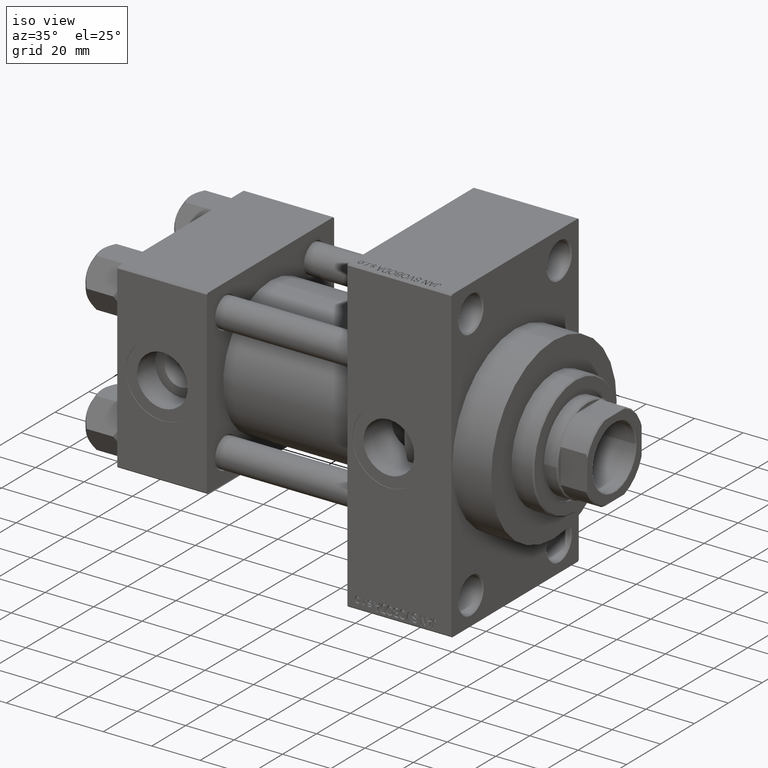
[diagram: clean part render]
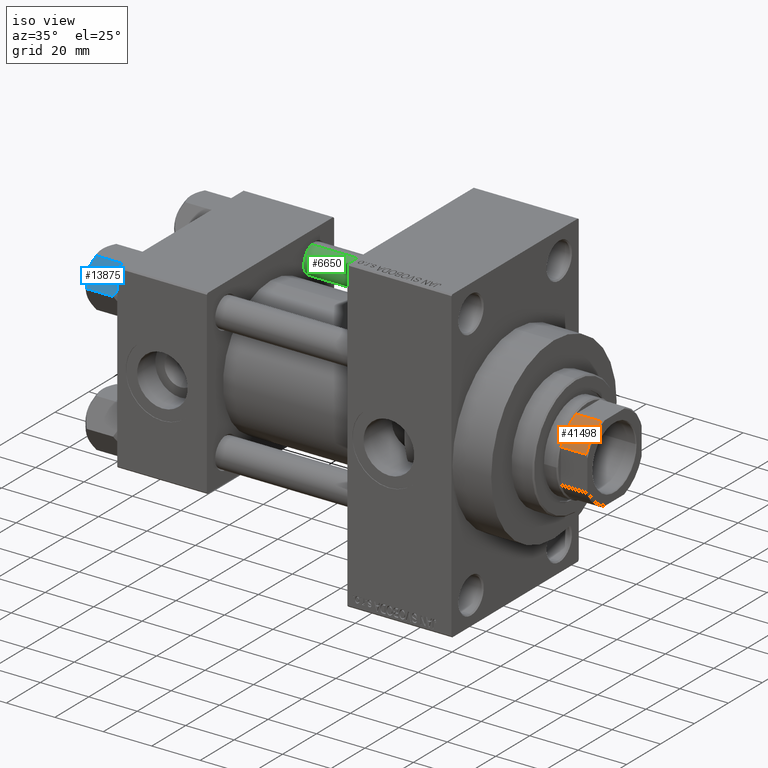
[diagram: same view with three faces highlighted in distinct colors, each labeled with its STEP entity id]
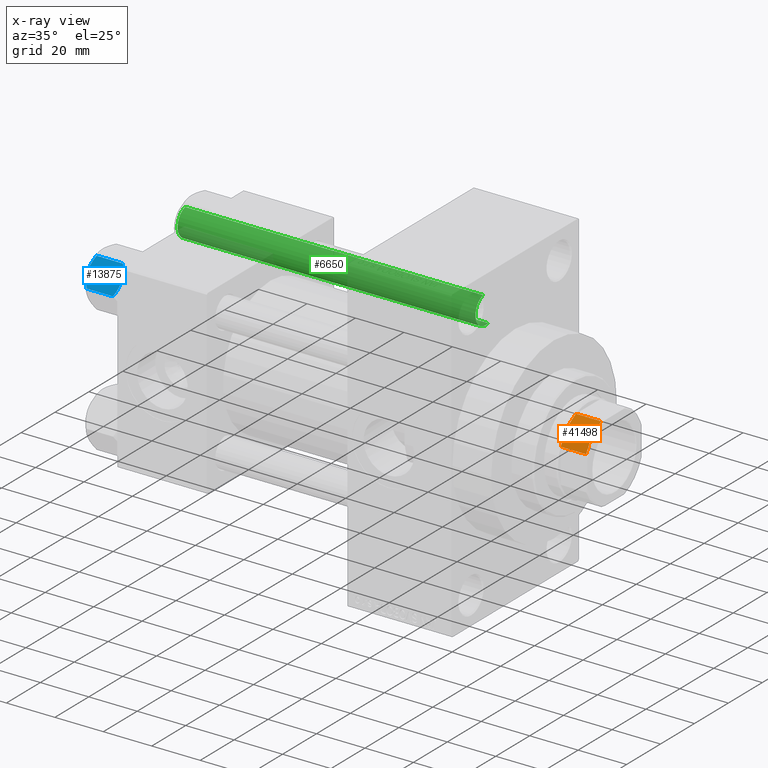
[diagram: x-ray of the same camera — body ghosted, the three highlighted faces saturated]
A machine part, iso view with three faces highlighted in distinct colors.
The next image is the same camera in x-ray (body ghosted, the three faces saturated) — at least one of them is partly hidden behind the body in this view.
Their STEP definitions:

[orange] entity #41498 — the highlighted cylindrical surface (partial cylindrical patch) has radius 17.5 mm, axis along (1, 0, 0).
#1304 = CYLINDRICAL_SURFACE ( 'NONE', #36094, 17.50000000000000000 ) ;
#1611 = EDGE_CURVE ( 'NONE', #28956, #2538, #32635, .T. ) ;
#2276 = DIRECTION ( 'NONE',  ( -0.000000000000000000, -0.000000000000000000, 1.000000000000000000 ) ) ;
#2538 = VERTEX_POINT ( 'NONE', #18150 ) ;
#3460 = AXIS2_PLACEMENT_3D ( 'NONE', #8940, #24169, #25151 ) ;
#4558 = DIRECTION ( 'NONE',  ( -0.000000000000000000, -0.000000000000000000, 1.000000000000000000 ) ) ;
#8295 = CARTESIAN_POINT ( 'NONE',  ( 0.000000000000000000, 0.000000000000000000, -0.001000000000001000089 ) ) ;
#8940 = CARTESIAN_POINT ( 'NONE',  ( 0.000000000000000000, 0.000000000000000000, 141.5000000000000284 ) ) ;
#9527 = AXIS2_PLACEMENT_3D ( 'NONE', #32494, #20531, #9544 ) ;
#9544 = DIRECTION ( 'NONE',  ( 1.000000000000000000, 0.000000000000000000, 0.000000000000000000 ) ) ;
#9894 = LINE ( 'NONE', #31850, #34442 ) ;
#11282 = VECTOR ( 'NONE', #2276, 1000.000000000000000 ) ;
#14193 = CARTESIAN_POINT ( 'NONE',  ( 7.088723439378915359, -16.00000000000000000, 141.5000000000000284 ) ) ;
#14216 = CARTESIAN_POINT ( 'NONE',  ( 15.99999999999999645, -7.088723439378925129, -0.001000000000001000089 ) ) ;
#16509 = DIRECTION ( 'NONE',  ( 1.000000000000000000, 0.000000000000000000, 0.000000000000000000 ) ) ;
#17470 = LINE ( 'NONE', #14216, #11282 ) ;
#18150 = CARTESIAN_POINT ( 'NONE',  ( 15.99999999999999645, -7.088723439378925129, 131.0000000000000284 ) ) ;
#19702 = EDGE_LOOP ( 'NONE', ( #31815, #40124, #45602, #35620 ) ) ;
#20531 = DIRECTION ( 'NONE',  ( 0.000000000000000000, 0.000000000000000000, 1.000000000000000000 ) ) ;
#24169 = DIRECTION ( 'NONE',  ( -0.000000000000000000, -0.000000000000000000, -1.000000000000000000 ) ) ;
#25117 = DIRECTION ( 'NONE',  ( -0.000000000000000000, -0.000000000000000000, 1.000000000000000000 ) ) ;
#25151 = DIRECTION ( 'NONE',  ( 1.000000000000000000, 0.000000000000000000, 0.000000000000000000 ) ) ;
#25236 = VERTEX_POINT ( 'NONE', #33696 ) ;
#27499 = FACE_OUTER_BOUND ( 'NONE', #19702, .T. ) ;
#28643 = EDGE_CURVE ( 'NONE', #25236, #31281, #42469, .T. ) ;
#28956 = VERTEX_POINT ( 'NONE', #41990 ) ;
#31281 = VERTEX_POINT ( 'NONE', #14193 ) ;
#31815 = ORIENTED_EDGE ( 'NONE', *, *, #46938, .T. ) ;
#31850 = CARTESIAN_POINT ( 'NONE',  ( 7.088723439378915359, -16.00000000000000000, -0.001000000000001000089 ) ) ;
#32494 = CARTESIAN_POINT ( 'NONE',  ( 0.000000000000000000, 0.000000000000000000, 131.0000000000000000 ) ) ;
#32635 = CIRCLE ( 'NONE', #9527, 17.50000000000003908 ) ;
#33696 = CARTESIAN_POINT ( 'NONE',  ( 15.99999999999999645, -7.088723439378925129, 141.5000000000000284 ) ) ;
#34442 = VECTOR ( 'NONE', #25117, 1000.000000000000000 ) ;
#35620 = ORIENTED_EDGE ( 'NONE', *, *, #1611, .T. ) ;
#36094 = AXIS2_PLACEMENT_3D ( 'NONE', #8295, #4558, #16509 ) ;
#40124 = ORIENTED_EDGE ( 'NONE', *, *, #28643, .T. ) ;
#41498 = ADVANCED_FACE ( 'NONE', ( #27499 ), #1304, .T. ) ;
#41990 = CARTESIAN_POINT ( 'NONE',  ( 7.088723439378915359, -16.00000000000000000, 131.0000000000000284 ) ) ;
#42469 = CIRCLE ( 'NONE', #3460, 17.50000000000000000 ) ;
#45602 = ORIENTED_EDGE ( 'NONE', *, *, #48464, .F. ) ;
#46938 = EDGE_CURVE ( 'NONE', #2538, #25236, #17470, .T. ) ;
#48464 = EDGE_CURVE ( 'NONE', #28956, #31281, #9894, .T. ) ;

[blue] entity #13875 — the highlighted planar face has unit normal (0, 0.866, -0.5).
#125 = DIRECTION ( 'NONE',  ( -0.4999999999999994449, 0.8660254037844389297, 0.000000000000000000 ) ) ;
#155 = EDGE_CURVE ( 'NONE', #17602, #7538, #6406, .T. ) ;
#279 = CARTESIAN_POINT ( 'NONE',  ( -6.265545725125283738, -9.274186850887380373, -12.89876091710046779 ) ) ;
#545 = CARTESIAN_POINT ( 'NONE',  ( -8.715000000000006963, -5.031607595987586556, 0.000000000000000000 ) ) ;
#743 = ORIENTED_EDGE ( 'NONE', *, *, #15193, .F. ) ;
#1101 = LINE ( 'NONE', #5079, #12207 ) ;
#1341 = EDGE_LOOP ( 'NONE', ( #743, #18916, #45682, #37881, #40607, #9194 ) ) ;
#1799 = CARTESIAN_POINT ( 'NONE',  ( -5.810000000000000497, -10.06321519197517844, -12.44321519197518633 ) ) ;
#3361 = CARTESIAN_POINT ( 'NONE',  ( -5.810000000000000497, -10.06321519197517844, -14.00000000000000000 ) ) ;
#4020 = CARTESIAN_POINT ( 'NONE',  ( -9.716999946243698005, -3.296092779912219939, -13.84547602999602667 ) ) ;
#4542 = VERTEX_POINT ( 'NONE', #40923 ) ;
#5079 = CARTESIAN_POINT ( 'NONE',  ( -11.61999999999999922, 6.288644352490894150E-15, -14.00000000000000000 ) ) ;
#5815 = CARTESIAN_POINT ( 'NONE',  ( -6.265018354709776638, -9.275100283241451748, -1.101766453314952043 ) ) ;
#6406 = B_SPLINE_CURVE_WITH_KNOTS ( 'NONE', 3,
 ( #34696, #38684, #19732, #37950, #34926, #15246, #7530, #545 ),
 .UNSPECIFIED., .F., .F.,
 ( 4, 2, 2, 4 ),
 ( 2.544312114893457383E-07, 0.003011550106433538623, 0.004517197944044561847, 0.006022845781655586372 ),
 .UNSPECIFIED. ) ;
#7098 = PLANE ( 'NONE',  #39326 ) ;
#7530 = CARTESIAN_POINT ( 'NONE',  ( -8.969430103550386946, -4.590921729663310025, 6.662949392646161370E-15 ) ) ;
#7538 = VERTEX_POINT ( 'NONE', #27290 ) ;
#7983 = CARTESIAN_POINT ( 'NONE',  ( -7.455303369716809847, -7.213466161761383333, -13.69973261901326644 ) ) ;
#9016 = CARTESIAN_POINT ( 'NONE',  ( -8.715000000000006963, -5.031607595987586556, -14.00000000000000000 ) ) ;
#9116 = EDGE_CURVE ( 'NONE', #18542, #4542, #30832, .T. ) ;
#9194 = ORIENTED_EDGE ( 'NONE', *, *, #9116, .F. ) ;
#12054 = DIRECTION ( 'NONE',  ( 0.8660254037844390407, 0.4999999999999995004, 0.000000000000000000 ) ) ;
#12207 = VECTOR ( 'NONE', #27763, 1000.000000000000000 ) ;
#13875 = ADVANCED_FACE ( 'NONE', ( #41509 ), #7098, .F. ) ;
#14020 = CARTESIAN_POINT ( 'NONE',  ( -6.733375043383495573, -8.463882702393842550, -0.7114554706434480513 ) ) ;
#14886 = LINE ( 'NONE', #45296, #26835 ) ;
#15193 = EDGE_CURVE ( 'NONE', #28370, #18542, #46384, .T. ) ;
#15233 = CARTESIAN_POINT ( 'NONE',  ( -9.220295946303428636, -4.156409344131446026, -14.00000000000000711 ) ) ;
#15246 = CARTESIAN_POINT ( 'NONE',  ( -9.227666995912100489, -4.143642311704120118, -0.03994118060690279165 ) ) ;
#15961 = CARTESIAN_POINT ( 'NONE',  ( -11.16498164529022219, -0.7881149087337223635, -12.89823354668505040 ) ) ;
#17602 = VERTEX_POINT ( 'NONE', #27960 ) ;
#18542 = VERTEX_POINT ( 'NONE', #9016 ) ;
#18916 = ORIENTED_EDGE ( 'NONE', *, *, #21393, .T. ) ;
#19664 = VERTEX_POINT ( 'NONE', #40994 ) ;
#19732 = CARTESIAN_POINT ( 'NONE',  ( -10.69859855102500923, -1.595914123792257611, -0.7141438259524607313 ) ) ;
#21393 = EDGE_CURVE ( 'NONE', #28370, #19664, #14886, .T. ) ;
#25015 = CARTESIAN_POINT ( 'NONE',  ( -8.209704053696567527, -5.906805847843720869, 6.159623592433269699E-15 ) ) ;
#25139 = DIRECTION ( 'NONE',  ( -0.000000000000000000, -0.000000000000000000, 1.000000000000000000 ) ) ;
#26727 = CARTESIAN_POINT ( 'NONE',  ( -10.69662495661650148, -1.599332489581326344, -13.28854452935655317 ) ) ;
#26835 = VECTOR ( 'NONE', #25139, 1000.000000000000000 ) ;
#27189 = CARTESIAN_POINT ( 'NONE',  ( -8.460569896449619876, -5.472293462311856871, -14.00000000000000888 ) ) ;
#27290 = CARTESIAN_POINT ( 'NONE',  ( -8.715000000000006963, -5.031607595987586556, 0.000000000000000000 ) ) ;
#27763 = DIRECTION ( 'NONE',  ( -0.000000000000000000, -0.000000000000000000, 1.000000000000000000 ) ) ;
#27960 = CARTESIAN_POINT ( 'NONE',  ( -11.61999999999999922, 6.270720075409452187E-15, -1.556784808024810562 ) ) ;
#28370 = VERTEX_POINT ( 'NONE', #1799 ) ;
#28993 = CARTESIAN_POINT ( 'NONE',  ( -7.713000053756304375, -6.767122412062951398, -0.1545239700039803266 ) ) ;
#29476 = CARTESIAN_POINT ( 'NONE',  ( -8.715000000000006963, -5.031607595987586556, 0.000000000000000000 ) ) ;
#30447 = CARTESIAN_POINT ( 'NONE',  ( -11.61999999999999922, 6.270720075510426383E-15, -12.44321519197518988 ) ) ;
#30832 = B_SPLINE_CURVE_WITH_KNOTS ( 'NONE', 3,
 ( #45906, #15233, #4020, #26727, #15961, #30447 ),
 .UNSPECIFIED., .F., .F.,
 ( 4, 2, 4 ),
 ( 0.006022845781655596781, 0.009013049135303641962, 0.01200325248895168714 ),
 .UNSPECIFIED. ) ;
#30929 = CARTESIAN_POINT ( 'NONE',  ( -7.700834831386346835, -6.788193195293090731, -13.80960203119266438 ) ) ;
#31169 = CARTESIAN_POINT ( 'NONE',  ( -5.810000000000000497, -10.06321519197517844, -12.44321519197518633 ) ) ;
#31805 = EDGE_CURVE ( 'NONE', #7538, #19664, #37491, .T. ) ;
#34696 = CARTESIAN_POINT ( 'NONE',  ( -11.61999999999999922, 6.270720075409452187E-15, -1.556784808024810562 ) ) ;
#34926 = CARTESIAN_POINT ( 'NONE',  ( -9.729165168613654657, -3.275021996682076608, -0.1903979688073365595 ) ) ;
#36470 = CARTESIAN_POINT ( 'NONE',  ( -5.810000000000000497, -10.06321519197517844, -1.556784808024813893 ) ) ;
#37491 = B_SPLINE_CURVE_WITH_KNOTS ( 'NONE', 3,
 ( #29476, #25015, #28993, #14020, #5815, #36470 ),
 .UNSPECIFIED., .F., .F.,
 ( 4, 2, 4 ),
 ( 0.006022845781655586372, 0.009013049135303635023, 0.01200325248895168367 ),
 .UNSPECIFIED. ) ;
#37881 = ORIENTED_EDGE ( 'NONE', *, *, #155, .F. ) ;
#37950 = CARTESIAN_POINT ( 'NONE',  ( -9.974696630283190757, -2.849749030213787115, -0.3002673809867329457 ) ) ;
#38658 = CARTESIAN_POINT ( 'NONE',  ( -8.715000000000006963, -5.031607595987586556, -14.00000000000000000 ) ) ;
#38684 = CARTESIAN_POINT ( 'NONE',  ( -11.16445427487471420, -0.7890283410877914072, -1.101239082899528432 ) ) ;
#39326 = AXIS2_PLACEMENT_3D ( 'NONE', #3361, #12054, #125 ) ;
#40607 = ORIENTED_EDGE ( 'NONE', *, *, #45651, .F. ) ;
#40923 = CARTESIAN_POINT ( 'NONE',  ( -11.61999999999999922, 6.270720075510426383E-15, -12.44321519197518988 ) ) ;
#40994 = CARTESIAN_POINT ( 'NONE',  ( -5.810000000000000497, -10.06321519197517844, -1.556784808024813893 ) ) ;
#41509 = FACE_OUTER_BOUND ( 'NONE', #1341, .T. ) ;
#42151 = CARTESIAN_POINT ( 'NONE',  ( -6.731401448974989599, -8.467301068182909063, -13.28585617404753272 ) ) ;
#45296 = CARTESIAN_POINT ( 'NONE',  ( -5.810000000000000497, -10.06321519197517844, -14.00000000000000000 ) ) ;
#45651 = EDGE_CURVE ( 'NONE', #4542, #17602, #1101, .T. ) ;
#45682 = ORIENTED_EDGE ( 'NONE', *, *, #31805, .F. ) ;
#45906 = CARTESIAN_POINT ( 'NONE',  ( -8.715000000000006963, -5.031607595987586556, -14.00000000000000000 ) ) ;
#46120 = CARTESIAN_POINT ( 'NONE',  ( -8.202333004087902779, -5.919572880271047666, -13.96005881939309745 ) ) ;
#46384 = B_SPLINE_CURVE_WITH_KNOTS ( 'NONE', 3,
 ( #31169, #279, #42151, #7983, #30929, #46120, #27189, #38658 ),
 .UNSPECIFIED., .F., .F.,
 ( 4, 2, 2, 4 ),
 ( 2.544312114906334931E-07, 0.003011550106433543393, 0.004517197944044570521, 0.006022845781655596781 ),
 .UNSPECIFIED. ) ;

[green] entity #6650 — the highlighted cylindrical surface (edge-blend (fillet) strip) has radius 6 mm, axis along (-1, -0, 0).
#1560 = DIRECTION ( 'NONE',  ( -0.000000000000000000, -0.000000000000000000, -1.000000000000000000 ) ) ;
#1762 = DIRECTION ( 'NONE',  ( -0.000000000000000000, -0.000000000000000000, -1.000000000000000000 ) ) ;
#2036 = CIRCLE ( 'NONE', #48995, 6.000000000000000888 ) ;
#2979 = EDGE_CURVE ( 'NONE', #22096, #34958, #39732, .T. ) ;
#6650 = ADVANCED_FACE ( 'NONE', ( #43691 ), #24015, .T. ) ;
#7303 = CARTESIAN_POINT ( 'NONE',  ( 6.000000000000000888, 7.347880794884120722E-16, 123.5000000000000426 ) ) ;
#9237 = LINE ( 'NONE', #35907, #38202 ) ;
#9290 = CARTESIAN_POINT ( 'NONE',  ( 0.000000000000000000, 0.000000000000000000, 124.0000000000000000 ) ) ;
#13090 = CARTESIAN_POINT ( 'NONE',  ( -6.000000000000000888, 0.000000000000000000, 0.4999999999999865663 ) ) ;
#14721 = DIRECTION ( 'NONE',  ( 0.000000000000000000, 0.000000000000000000, -1.000000000000000000 ) ) ;
#15931 = CARTESIAN_POINT ( 'NONE',  ( -6.000000000000000888, 0.000000000000000000, 123.5000000000000426 ) ) ;
#17743 = EDGE_CURVE ( 'NONE', #33744, #22096, #21931, .T. ) ;
#18419 = CARTESIAN_POINT ( 'NONE',  ( 0.000000000000000000, 0.000000000000000000, 0.4999999999999865663 ) ) ;
#18936 = EDGE_CURVE ( 'NONE', #34958, #47837, #2036, .T. ) ;
#21931 = CIRCLE ( 'NONE', #28292, 6.000000000000000888 ) ;
#22096 = VERTEX_POINT ( 'NONE', #15931 ) ;
#23931 = VECTOR ( 'NONE', #35987, 1000.000000000000000 ) ;
#24015 = CYLINDRICAL_SURFACE ( 'NONE', #28715, 6.000000000000000888 ) ;
#28292 = AXIS2_PLACEMENT_3D ( 'NONE', #32448, #14721, #29929 ) ;
#28488 = DIRECTION ( 'NONE',  ( -1.000000000000000000, 0.000000000000000000, 0.000000000000000000 ) ) ;
#28715 = AXIS2_PLACEMENT_3D ( 'NONE', #9290, #1560, #28488 ) ;
#29880 = DIRECTION ( 'NONE',  ( 1.000000000000000000, 0.000000000000000000, 0.000000000000000000 ) ) ;
#29929 = DIRECTION ( 'NONE',  ( 1.000000000000000000, 0.000000000000000000, 0.000000000000000000 ) ) ;
#30194 = ORIENTED_EDGE ( 'NONE', *, *, #17743, .T. ) ;
#30743 = ORIENTED_EDGE ( 'NONE', *, *, #18936, .T. ) ;
#32448 = CARTESIAN_POINT ( 'NONE',  ( 0.000000000000000000, 0.000000000000000000, 123.5000000000000426 ) ) ;
#33038 = ORIENTED_EDGE ( 'NONE', *, *, #2979, .T. ) ;
#33744 = VERTEX_POINT ( 'NONE', #7303 ) ;
#34466 = EDGE_CURVE ( 'NONE', #33744, #47837, #9237, .T. ) ;
#34739 = CARTESIAN_POINT ( 'NONE',  ( 6.000000000000000888, 7.347880794884120722E-16, 0.4999999999999865663 ) ) ;
#34958 = VERTEX_POINT ( 'NONE', #13090 ) ;
#35907 = CARTESIAN_POINT ( 'NONE',  ( 6.000000000000000888, 7.347880794884120722E-16, 124.0000000000000000 ) ) ;
#35987 = DIRECTION ( 'NONE',  ( -0.000000000000000000, -0.000000000000000000, -1.000000000000000000 ) ) ;
#38202 = VECTOR ( 'NONE', #1762, 1000.000000000000000 ) ;
#39732 = LINE ( 'NONE', #43232, #23931 ) ;
#43232 = CARTESIAN_POINT ( 'NONE',  ( -6.000000000000000888, 0.000000000000000000, 124.0000000000000000 ) ) ;
#43691 = FACE_OUTER_BOUND ( 'NONE', #45108, .T. ) ;
#45108 = EDGE_LOOP ( 'NONE', ( #45471, #30194, #33038, #30743 ) ) ;
#45471 = ORIENTED_EDGE ( 'NONE', *, *, #34466, .F. ) ;
#47837 = VERTEX_POINT ( 'NONE', #34739 ) ;
#48995 = AXIS2_PLACEMENT_3D ( 'NONE', #18419, #49298, #29880 ) ;
#49298 = DIRECTION ( 'NONE',  ( -0.000000000000000000, -0.000000000000000000, 1.000000000000000000 ) ) ;